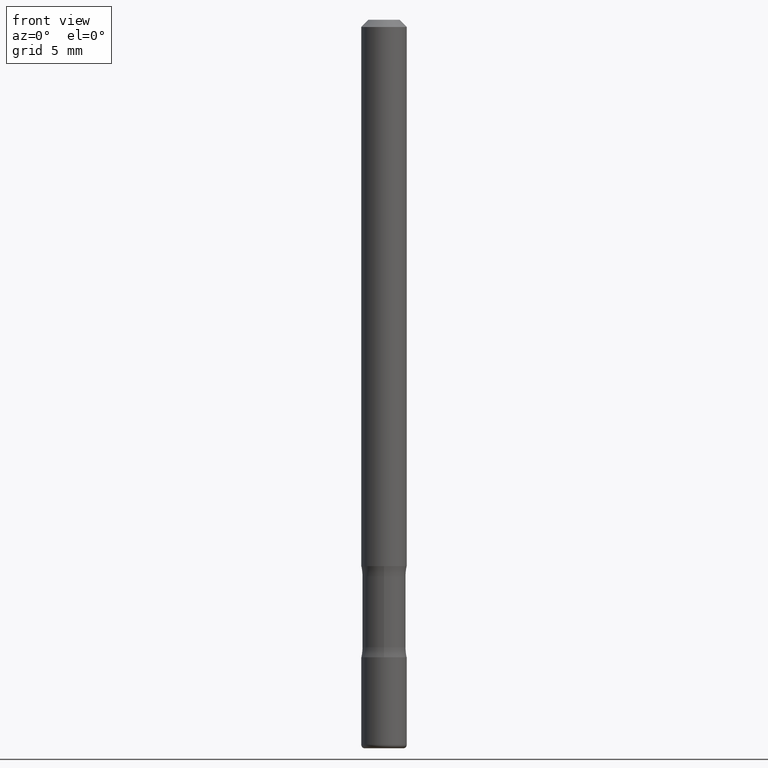
[diagram: clean part render]
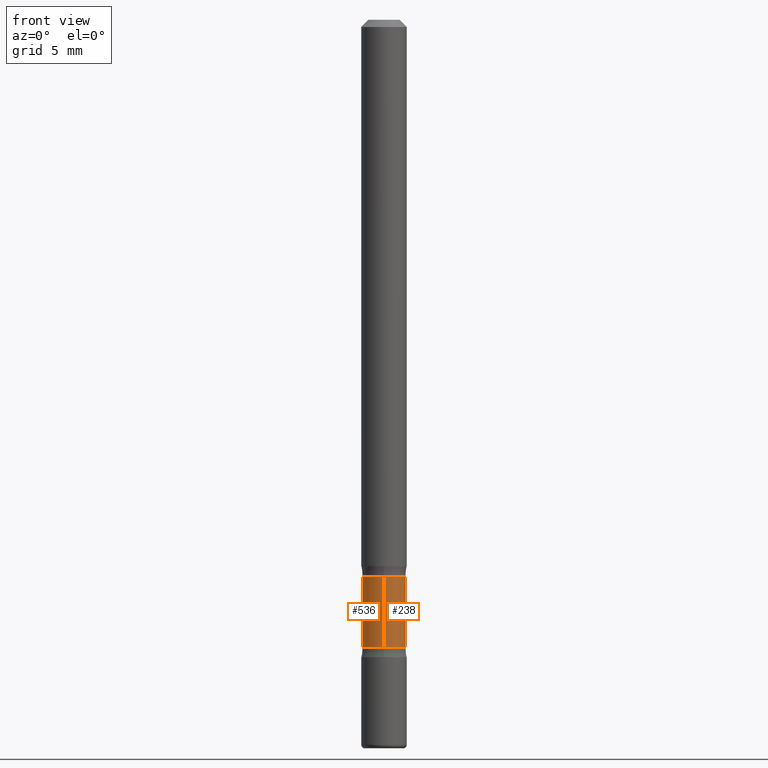
[diagram: same view with one multi-face feature highlighted, each face labeled with its STEP entity id]
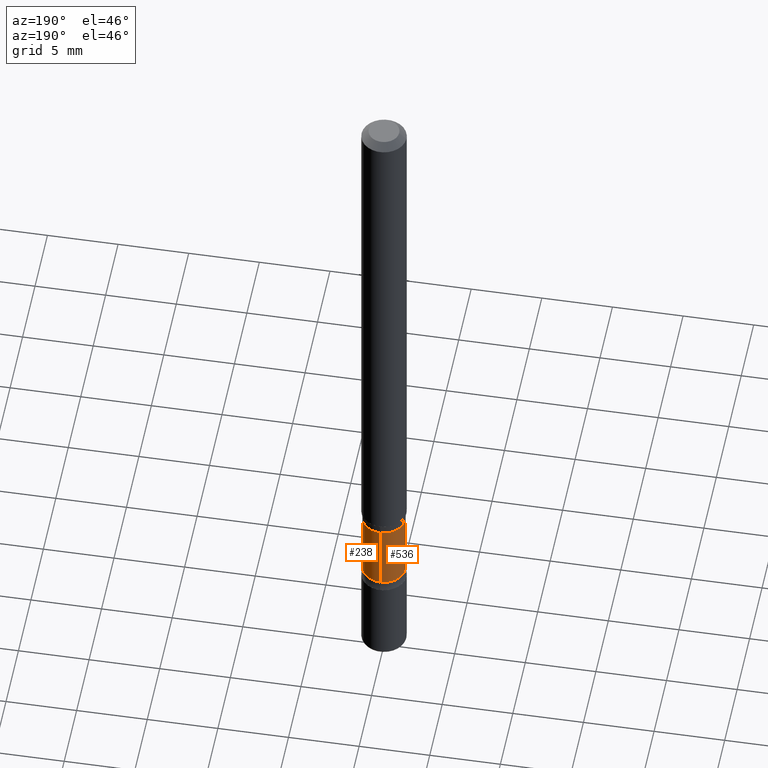
[diagram: same view with one multi-face feature highlighted, each face labeled with its STEP entity id]
A machine part, front view. The highlighted faces form ONE feature: a constant-radius fillet chain: 2 tangent blend faces with common blend radius 1.5081 mm. The faces share edges in the B-rep.
A second angle (auxiliary view) of the same feature is appended — it is thin or edge-on in the first view.
Their STEP definitions:
[1] entity #536 (Cylinder):
#2 = CYLINDRICAL_SURFACE ( 'NONE', #127, 0.05937499999999967110 ) ;
#9 = VERTEX_POINT ( 'NONE', #488 ) ;
#18 = DIRECTION ( 'NONE',  ( 6.982962677686266711E-15, 1.000000000000000000, -4.601007147224048087E-15 ) ) ;
#127 = AXIS2_PLACEMENT_3D ( 'NONE', #343, #510, #18 ) ;
#133 = LINE ( 'NONE', #296, #239 ) ;
#182 = CARTESIAN_POINT ( 'NONE',  ( 4.146134089876643393E-16, 0.05937499999999401590, -1.722224392445885544 ) ) ;
#185 = CARTESIAN_POINT ( 'NONE',  ( 4.146134089876587187E-16, 0.05937499999999455713, -1.527775607554112458 ) ) ;
#189 = EDGE_CURVE ( 'NONE', #420, #344, #133, .T. ) ;
#222 = ORIENTED_EDGE ( 'NONE', *, *, #557, .F. ) ;
#235 = FACE_OUTER_BOUND ( 'NONE', #309, .T. ) ;
#239 = VECTOR ( 'NONE', #345, 39.37007874015748143 ) ;
#262 = VERTEX_POINT ( 'NONE', #474 ) ;
#296 = CARTESIAN_POINT ( 'NONE',  ( 4.146134089876645858E-16, 0.05937499999999210076, -1.999999999999998668 ) ) ;
#302 = DIRECTION ( 'NONE',  ( 8.010757980930134339E-30, -5.846345719468729014E-15, -1.000000000000000000 ) ) ;
#305 = ORIENTED_EDGE ( 'NONE', *, *, #444, .F. ) ;
#306 = DIRECTION ( 'NONE',  ( 8.010757980930134339E-30, -5.846345719468729014E-15, -1.000000000000000000 ) ) ;
#309 = EDGE_LOOP ( 'NONE', ( #222, #452, #509, #305 ) ) ;
#310 = CIRCLE ( 'NONE', #476, 0.05937499999999937272 ) ;
#341 = DIRECTION ( 'NONE',  ( 6.982962677686265133E-15, 1.000000000000000000, -4.601007147224025211E-15 ) ) ;
#343 = CARTESIAN_POINT ( 'NONE',  ( 4.479839360347238409E-29, -7.571678772842681008E-15, -1.999999999999998446 ) ) ;
#344 = VERTEX_POINT ( 'NONE', #182 ) ;
#345 = DIRECTION ( 'NONE',  ( 8.010757980930134339E-30, -5.846345719468729014E-15, -1.000000000000000000 ) ) ;
#354 = EDGE_CURVE ( 'NONE', #262, #420, #310, .T. ) ;
#375 = CARTESIAN_POINT ( 'NONE',  ( 4.101551828289662394E-29, -4.810891717437951800E-15, -1.527775607554112014 ) ) ;
#383 = CIRCLE ( 'NONE', #495, 0.05937499999999996253 ) ;
#390 = CARTESIAN_POINT ( 'NONE',  ( 4.257320043835055680E-29, -5.947706538645865427E-15, -1.722224392445885321 ) ) ;
#420 = VERTEX_POINT ( 'NONE', #185 ) ;
#444 = EDGE_CURVE ( 'NONE', #9, #344, #383, .T. ) ;
#452 = ORIENTED_EDGE ( 'NONE', *, *, #354, .T. ) ;
#473 = CARTESIAN_POINT ( 'NONE',  ( -4.073420686176375718E-16, -0.05937500000000724837, -1.999999999999998002 ) ) ;
#474 = CARTESIAN_POINT ( 'NONE',  ( -4.180615967391589820E-16, -0.05937500000000418832, -1.527775607554111792 ) ) ;
#476 = AXIS2_PLACEMENT_3D ( 'NONE', #375, #559, #550 ) ;
#488 = CARTESIAN_POINT ( 'NONE',  ( -4.180615967391622360E-16, -0.05937500000000592304, -1.722224392445884877 ) ) ;
#495 = AXIS2_PLACEMENT_3D ( 'NONE', #390, #306, #341 ) ;
#509 = ORIENTED_EDGE ( 'NONE', *, *, #189, .T. ) ;
#510 = DIRECTION ( 'NONE',  ( 8.010757980930134339E-30, -5.846345719468729014E-15, -1.000000000000000000 ) ) ;
#517 = LINE ( 'NONE', #473, #543 ) ;
#536 = ADVANCED_FACE ( 'NONE', ( #235 ), #2, .T. ) ;
#543 = VECTOR ( 'NONE', #302, 39.37007874015748143 ) ;
#550 = DIRECTION ( 'NONE',  ( 6.982962677686266711E-15, 1.000000000000000000, -4.601007147224070964E-15 ) ) ;
#557 = EDGE_CURVE ( 'NONE', #262, #9, #517, .T. ) ;
#559 = DIRECTION ( 'NONE',  ( 8.010757980930134339E-30, -5.846345719468729014E-15, -1.000000000000000000 ) ) ;
[2] entity #238 (Cylinder):
#1 = ORIENTED_EDGE ( 'NONE', *, *, #189, .F. ) ;
#9 = VERTEX_POINT ( 'NONE', #488 ) ;
#39 = CYLINDRICAL_SURFACE ( 'NONE', #340, 0.05937499999999967110 ) ;
#50 = ORIENTED_EDGE ( 'NONE', *, *, #497, .T. ) ;
#84 = CARTESIAN_POINT ( 'NONE',  ( 4.479839360347238409E-29, -7.571678772842681008E-15, -1.999999999999998446 ) ) ;
#133 = LINE ( 'NONE', #296, #239 ) ;
#174 = DIRECTION ( 'NONE',  ( 8.010757980930134339E-30, -5.846345719468729014E-15, -1.000000000000000000 ) ) ;
#182 = CARTESIAN_POINT ( 'NONE',  ( 4.146134089876643393E-16, 0.05937499999999401590, -1.722224392445885544 ) ) ;
#185 = CARTESIAN_POINT ( 'NONE',  ( 4.146134089876587187E-16, 0.05937499999999455713, -1.527775607554112458 ) ) ;
#189 = EDGE_CURVE ( 'NONE', #420, #344, #133, .T. ) ;
#191 = DIRECTION ( 'NONE',  ( 8.010757980930134339E-30, -5.846345719468729014E-15, -1.000000000000000000 ) ) ;
#197 = CARTESIAN_POINT ( 'NONE',  ( 4.101551828289662394E-29, -4.810891717437951800E-15, -1.527775607554112014 ) ) ;
#199 = CIRCLE ( 'NONE', #484, 0.05937499999999937272 ) ;
#215 = CIRCLE ( 'NONE', #410, 0.05937499999999996253 ) ;
#232 = DIRECTION ( 'NONE',  ( 6.982962677686266711E-15, 1.000000000000000000, -4.601007147224070964E-15 ) ) ;
#238 = ADVANCED_FACE ( 'NONE', ( #537 ), #39, .T. ) ;
#239 = VECTOR ( 'NONE', #345, 39.37007874015748143 ) ;
#262 = VERTEX_POINT ( 'NONE', #474 ) ;
#264 = ORIENTED_EDGE ( 'NONE', *, *, #328, .F. ) ;
#296 = CARTESIAN_POINT ( 'NONE',  ( 4.146134089876645858E-16, 0.05937499999999210076, -1.999999999999998668 ) ) ;
#302 = DIRECTION ( 'NONE',  ( 8.010757980930134339E-30, -5.846345719468729014E-15, -1.000000000000000000 ) ) ;
#328 = EDGE_CURVE ( 'NONE', #344, #9, #215, .T. ) ;
#329 = DIRECTION ( 'NONE',  ( 6.982962677686266711E-15, 1.000000000000000000, -4.601007147224048087E-15 ) ) ;
#340 = AXIS2_PLACEMENT_3D ( 'NONE', #84, #371, #329 ) ;
#344 = VERTEX_POINT ( 'NONE', #182 ) ;
#345 = DIRECTION ( 'NONE',  ( 8.010757980930134339E-30, -5.846345719468729014E-15, -1.000000000000000000 ) ) ;
#371 = DIRECTION ( 'NONE',  ( 8.010757980930134339E-30, -5.846345719468729014E-15, -1.000000000000000000 ) ) ;
#382 = EDGE_LOOP ( 'NONE', ( #50, #430, #264, #1 ) ) ;
#410 = AXIS2_PLACEMENT_3D ( 'NONE', #546, #174, #551 ) ;
#420 = VERTEX_POINT ( 'NONE', #185 ) ;
#430 = ORIENTED_EDGE ( 'NONE', *, *, #557, .T. ) ;
#473 = CARTESIAN_POINT ( 'NONE',  ( -4.073420686176375718E-16, -0.05937500000000724837, -1.999999999999998002 ) ) ;
#474 = CARTESIAN_POINT ( 'NONE',  ( -4.180615967391589820E-16, -0.05937500000000418832, -1.527775607554111792 ) ) ;
#484 = AXIS2_PLACEMENT_3D ( 'NONE', #197, #191, #232 ) ;
#488 = CARTESIAN_POINT ( 'NONE',  ( -4.180615967391622360E-16, -0.05937500000000592304, -1.722224392445884877 ) ) ;
#497 = EDGE_CURVE ( 'NONE', #420, #262, #199, .T. ) ;
#517 = LINE ( 'NONE', #473, #543 ) ;
#537 = FACE_OUTER_BOUND ( 'NONE', #382, .T. ) ;
#543 = VECTOR ( 'NONE', #302, 39.37007874015748143 ) ;
#546 = CARTESIAN_POINT ( 'NONE',  ( 4.257320043835055680E-29, -5.947706538645865427E-15, -1.722224392445885321 ) ) ;
#551 = DIRECTION ( 'NONE',  ( 6.982962677686265133E-15, 1.000000000000000000, -4.601007147224025211E-15 ) ) ;
#557 = EDGE_CURVE ( 'NONE', #262, #9, #517, .T. ) ;